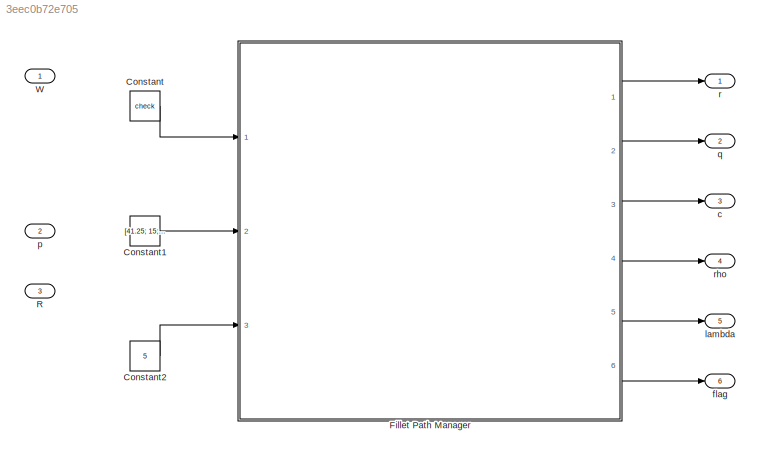
MODEL slx_3eec0b72e705
KIND model
CONFIG AbsTol = auto
CONFIG EnableMultiTasking = off
CONFIG FixedStep = auto
CONFIG MaxStep = auto
CONFIG MinStep = auto
CONFIG RelTol = 1e-3
CONFIG SampleTimeConstraint = Unconstrained
CONFIG Solver = VariableStepAuto
CONFIG SolverName = VariableStepAuto
CONFIG StartTime = 0.0
CONFIG StopTime = 10.0
BLOCK [Constant] Constant
  Value = check
BLOCK [Constant] Constant1
  Value = [41.25; 15; 100]
BLOCK [Constant] Constant2
  Value = 5
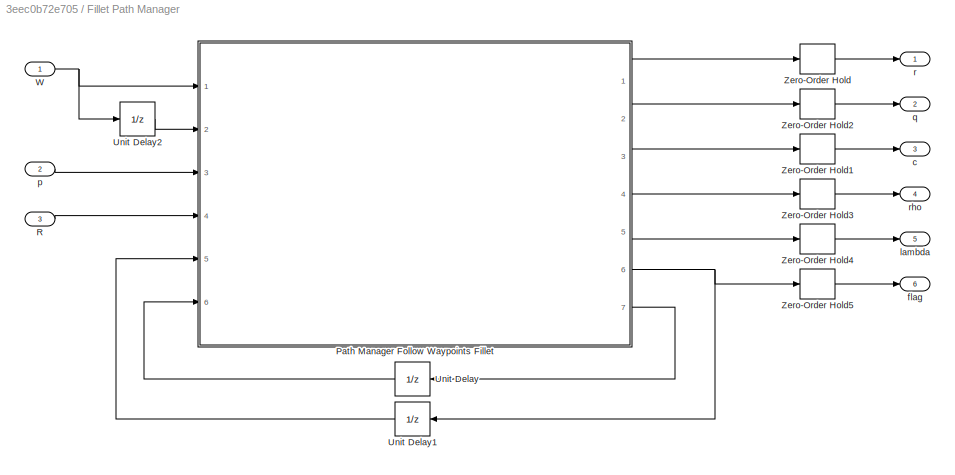
BLOCK [SubSystem] Fillet Path Manager
  Ports = [3, 6]
  RequestExecContextInheritance = off
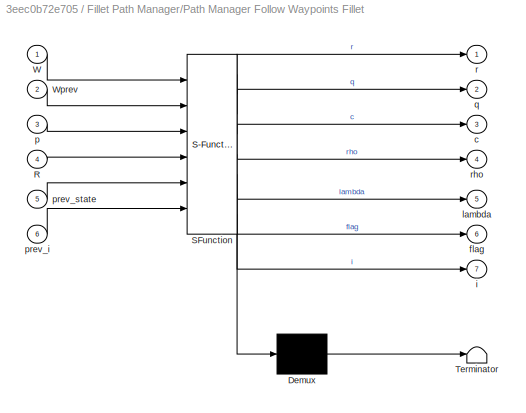
BLOCK [SubSystem] Fillet Path Manager/Path Manager Follow Waypoints Fillet
  ErrorFcn = Stateflow.Translate.translate
  PermitHierarchicalResolution = ExplicitOnly
  Ports = [6, 7]
  RequestExecContextInheritance = off
  SFBlockType = MATLAB Function
  TreatAsAtomicUnit = on
BLOCK [Demux] Fillet Path Manager/Path Manager Follow Waypoints Fillet/ Demux 
  Outputs = 1
  Ports = [1, 1]
BLOCK [S-Function] Fillet Path Manager/Path Manager Follow Waypoints Fillet/ SFunction 
  EnableBusSupport = on
  FunctionName = sf_sfun
  PortCounts = [6 8]
  Ports = [6, 8]
  SFcnIsStateOwnerBlock = off
  SFunctionDeploymentMode = off
  Tag = Stateflow S-Function PathManager 2
BLOCK [Terminator] Fillet Path Manager/Path Manager Follow Waypoints Fillet/ Terminator 
BLOCK [Inport] Fillet Path Manager/Path Manager Follow Waypoints Fillet/R
  IconDisplay = Port number
  Port = 4
BLOCK [Inport] Fillet Path Manager/Path Manager Follow Waypoints Fillet/W
  IconDisplay = Port number
BLOCK [Inport] Fillet Path Manager/Path Manager Follow Waypoints Fillet/Wprev
  IconDisplay = Port number
  Port = 2
BLOCK [Outport] Fillet Path Manager/Path Manager Follow Waypoints Fillet/c
  IconDisplay = Port number
  Port = 3
BLOCK [Outport] Fillet Path Manager/Path Manager Follow Waypoints Fillet/flag
  IconDisplay = Port number
  Port = 6
BLOCK [Outport] Fillet Path Manager/Path Manager Follow Waypoints Fillet/i
  IconDisplay = Port number
  Port = 7
BLOCK [Outport] Fillet Path Manager/Path Manager Follow Waypoints Fillet/lambda
  IconDisplay = Port number
  Port = 5
BLOCK [Inport] Fillet Path Manager/Path Manager Follow Waypoints Fillet/p
  IconDisplay = Port number
  Port = 3
BLOCK [Inport] Fillet Path Manager/Path Manager Follow Waypoints Fillet/prev_i
  IconDisplay = Port number
  Port = 6
BLOCK [Inport] Fillet Path Manager/Path Manager Follow Waypoints Fillet/prev_state
  IconDisplay = Port number
  Port = 5
BLOCK [Outport] Fillet Path Manager/Path Manager Follow Waypoints Fillet/q
  IconDisplay = Port number
  Port = 2
BLOCK [Outport] Fillet Path Manager/Path Manager Follow Waypoints Fillet/r
  IconDisplay = Port number
BLOCK [Outport] Fillet Path Manager/Path Manager Follow Waypoints Fillet/rho
  IconDisplay = Port number
  Port = 4
BLOCK [Inport] Fillet Path Manager/R
  IconDisplay = Port number
  Port = 3
BLOCK [UnitDelay] Fillet Path Manager/Unit Delay
  InitialCondition = 2
  InputProcessing = Elements as channels (sample based)
  SampleTime = SampleTime
BLOCK [UnitDelay] Fillet Path Manager/Unit Delay1
  InitialCondition = 1
  InputProcessing = Elements as channels (sample based)
  SampleTime = SampleTime
BLOCK [UnitDelay] Fillet Path Manager/Unit Delay2
  InputProcessing = Elements as channels (sample based)
  SampleTime = SampleTime
BLOCK [Inport] Fillet Path Manager/W
  IconDisplay = Port number
BLOCK [ZeroOrderHold] Fillet Path Manager/Zero-Order Hold
  SampleTime = SampleTime
BLOCK [ZeroOrderHold] Fillet Path Manager/Zero-Order Hold1
  SampleTime = SampleTime
BLOCK [ZeroOrderHold] Fillet Path Manager/Zero-Order Hold2
  SampleTime = SampleTime
BLOCK [ZeroOrderHold] Fillet Path Manager/Zero-Order Hold3
  SampleTime = SampleTime
BLOCK [ZeroOrderHold] Fillet Path Manager/Zero-Order Hold4
  SampleTime = SampleTime
BLOCK [ZeroOrderHold] Fillet Path Manager/Zero-Order Hold5
  SampleTime = SampleTime
BLOCK [Outport] Fillet Path Manager/c
  IconDisplay = Port number
  Port = 3
BLOCK [Outport] Fillet Path Manager/flag
  IconDisplay = Port number
  Port = 6
BLOCK [Outport] Fillet Path Manager/lambda
  IconDisplay = Port number
  Port = 5
BLOCK [Inport] Fillet Path Manager/p
  IconDisplay = Port number
  Port = 2
BLOCK [Outport] Fillet Path Manager/q
  IconDisplay = Port number
  Port = 2
BLOCK [Outport] Fillet Path Manager/r
  IconDisplay = Port number
BLOCK [Outport] Fillet Path Manager/rho
  IconDisplay = Port number
  Port = 4
BLOCK [Inport] R
  IconDisplay = Port number
  Port = 3
BLOCK [Inport] W
  IconDisplay = Port number
BLOCK [Outport] c
  IconDisplay = Port number
  Port = 3
BLOCK [Outport] flag
  IconDisplay = Port number
  Port = 6
BLOCK [Outport] lambda
  IconDisplay = Port number
  Port = 5
BLOCK [Inport] p
  IconDisplay = Port number
  Port = 2
BLOCK [Outport] q
  IconDisplay = Port number
  Port = 2
BLOCK [Outport] r
  IconDisplay = Port number
BLOCK [Outport] rho
  IconDisplay = Port number
  Port = 4
LINE Constant1:1 -> Fillet Path Manager:2
LINE Constant2:1 -> Fillet Path Manager:3
LINE Constant:1 -> Fillet Path Manager:1
LINE Fillet Path Manager/Path Manager Follow Waypoints Fillet:1 -> Fillet Path Manager/Zero-Order Hold:1
LINE Fillet Path Manager/Path Manager Follow Waypoints Fillet:2 -> Fillet Path Manager/Zero-Order Hold2:1
LINE Fillet Path Manager/Path Manager Follow Waypoints Fillet:3 -> Fillet Path Manager/Zero-Order Hold1:1
LINE Fillet Path Manager/Path Manager Follow Waypoints Fillet:4 -> Fillet Path Manager/Zero-Order Hold3:1
LINE Fillet Path Manager/Path Manager Follow Waypoints Fillet:5 -> Fillet Path Manager/Zero-Order Hold4:1
NET Fillet Path Manager/Path Manager Follow Waypoints Fillet:6 -> Fillet Path Manager/Unit Delay1:1, Fillet Path Manager/Zero-Order Hold5:1
LINE Fillet Path Manager/Path Manager Follow Waypoints Fillet:7 -> Fillet Path Manager/Unit Delay:1
LINE Fillet Path Manager/R:1 -> Fillet Path Manager/Path Manager Follow Waypoints Fillet:4
LINE Fillet Path Manager/Unit Delay1:1 -> Fillet Path Manager/Path Manager Follow Waypoints Fillet:5
LINE Fillet Path Manager/Unit Delay2:1 -> Fillet Path Manager/Path Manager Follow Waypoints Fillet:2
LINE Fillet Path Manager/Unit Delay:1 -> Fillet Path Manager/Path Manager Follow Waypoints Fillet:6
NET Fillet Path Manager/W:1 -> Fillet Path Manager/Path Manager Follow Waypoints Fillet:1, Fillet Path Manager/Unit Delay2:1
LINE Fillet Path Manager/Zero-Order Hold1:1 -> Fillet Path Manager/c:1
LINE Fillet Path Manager/Zero-Order Hold2:1 -> Fillet Path Manager/q:1
LINE Fillet Path Manager/Zero-Order Hold3:1 -> Fillet Path Manager/rho:1
LINE Fillet Path Manager/Zero-Order Hold4:1 -> Fillet Path Manager/lambda:1
LINE Fillet Path Manager/Zero-Order Hold5:1 -> Fillet Path Manager/flag:1
LINE Fillet Path Manager/Zero-Order Hold:1 -> Fillet Path Manager/r:1
LINE Fillet Path Manager/p:1 -> Fillet Path Manager/Path Manager Follow Waypoints Fillet:3
LINE Fillet Path Manager:1 -> r:1
LINE Fillet Path Manager:2 -> q:1
LINE Fillet Path Manager:3 -> c:1
LINE Fillet Path Manager:4 -> rho:1
LINE Fillet Path Manager:5 -> lambda:1
LINE Fillet Path Manager:6 -> flag:1
note: NET lines group one-source signal fan-out (src -> all destinations, sorted); 1:1 wires keep LINE
CHART Fillet Path Manager/Path Manager Follow Waypoints Fillet states=1 transitions=1
  STATE_LABEL 'eML_blk_kernel()'
  STATE_LABEL 'SCRIPT:\nfunction [r, q, c, rho, lambda, flag, i] = fcn(W, Wprev, p, R, prev_state, prev_i)\n    \n    [r, q, c, rho, lambda, flag, i] = pathManager_followWaypointsFillet(W, Wprev, p, R, prev_state, prev_i);\n\nend'
